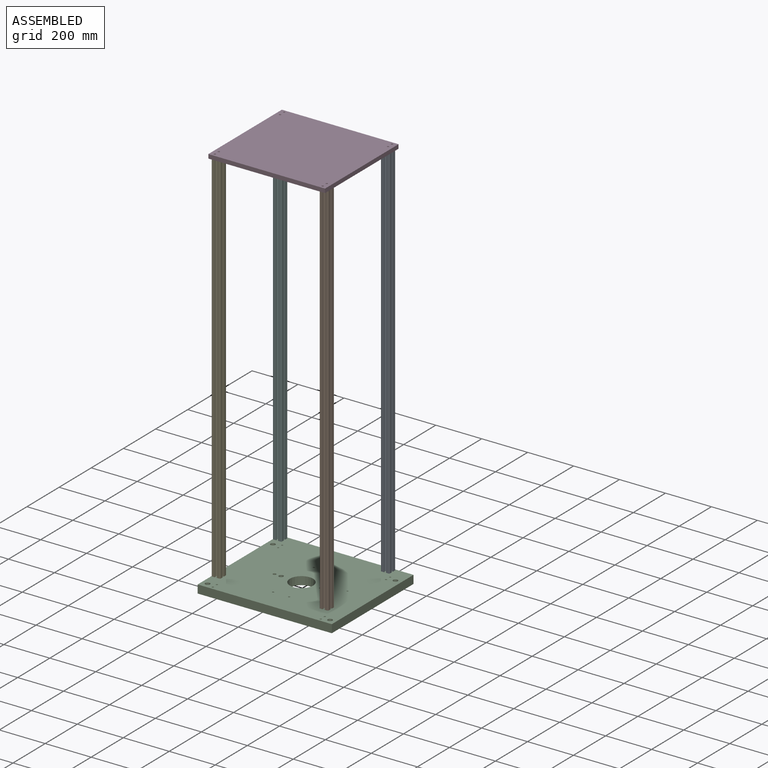
[diagram: assembled view]
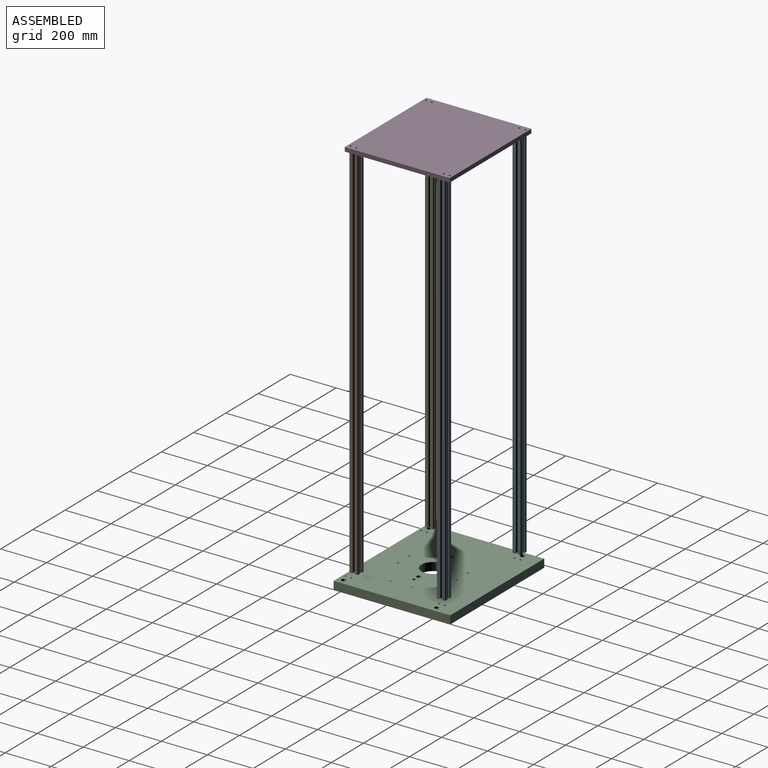
[diagram: assembled view, second angle]
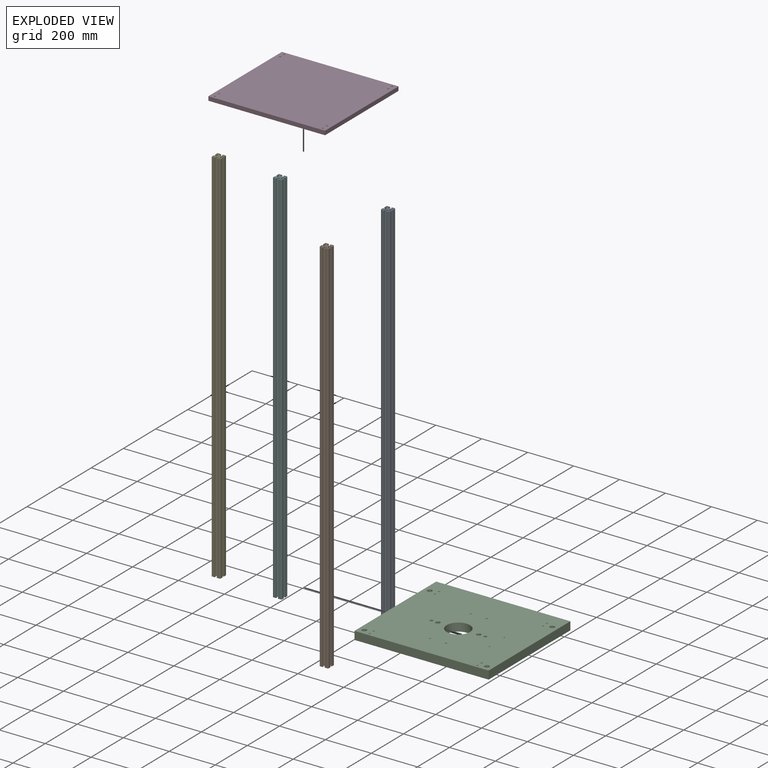
[diagram: exploded view]
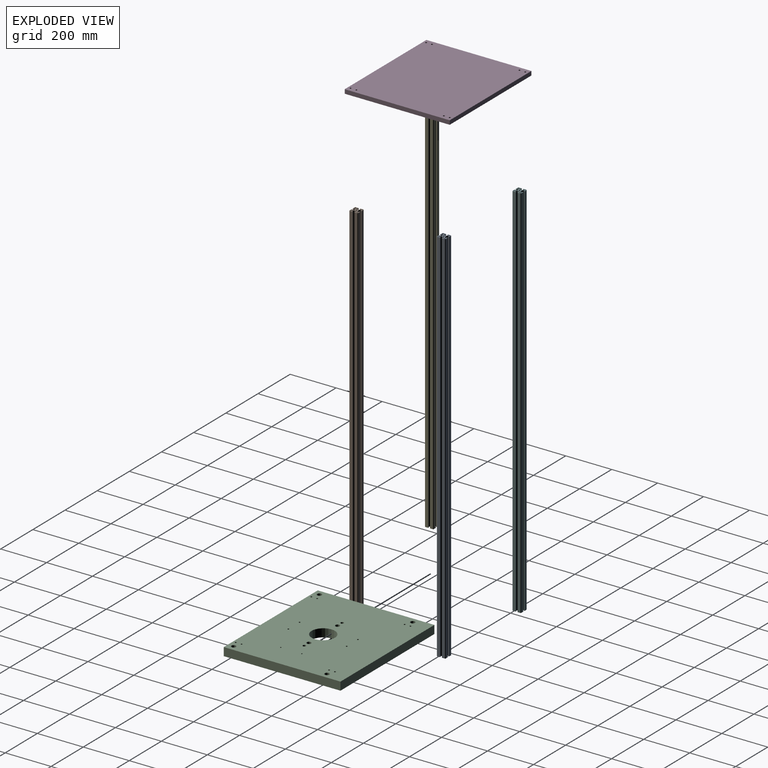
[diagram: exploded view, second angle]
ASSEMBLY  parts=6 mates=8
PART A: 87 faces, bbox 38.1x38.1x1651 mm
  f0: plane 1651x2.59mm, normal (1,0,0), area 4277.4mm2, adj f1,f84,f85,f86
  f1: cylinder r=2.79mm len=1651mm, axis (0,0,-1), area 7245.9mm2, adj f0,f2,f85,f86
  f2: plane 1651x2.59mm, normal (0,-1,0), area 4277.4mm2, adj f1,f3,f85,f86
  f3: plane 1651x5.38mm, normal (-1,0,0), area 8890.3mm2, adj f2,f84,f85,f86
  f4: plane 1651x2.59mm, normal (1,0,0), area 4277.4mm2, adj f5,f79,f85,f86
  f5: plane 1651x5.38mm, normal (0,-1,0), area 8890.3mm2, adj f4,f6,f85,f86
  f6: plane 1651x5.38mm, normal (-1,0,0), area 8890.3mm2, adj f5,f7,f85,f86
  f7: plane 1651x2.59mm, normal (0,1,0), area 4277.4mm2, adj f6,f79,f85,f86
  f8: plane 1651x2.59mm, normal (0,1,0), area 4277.4mm2, adj f9,f80,f85,f86
  f9: plane 1651x5.38mm, normal (1,0,0), area 8890.3mm2, adj f8,f10,f85,f86
  f10: plane 1651x5.38mm, normal (0,-1,0), area 8890.3mm2, adj f9,f11,f85,f86
  f11: plane 1651x2.59mm, normal (-1,0,0), area 4277.4mm2, adj f10,f80,f85,f86
  f12: cylinder r=2.79mm len=1651mm, axis (0,0,-1), area 7245.9mm2, adj f13,f81,f85,f86
  f13: plane 1651x2.59mm, normal (-1,0,0), area 4277.4mm2, adj f12,f14,f85,f86
  f14: plane 1651x5.38mm, normal (0,1,0), area 8890.3mm2, adj f13,f15,f85,f86
  f15: plane 1651x5.38mm, normal (1,0,0), area 8890.3mm2, adj f14,f81,f85,f86
  f16: plane 1651x4.57mm, normal (0,-1,0), area 7548.4mm2, adj f17,f82,f85,f86
  f17: plane 1651x2.79mm, normal (1,0,0), area 4612.9mm2, adj f16,f18,f85,f86
  f18: plane 1651x1.19mm, normal (0,1,0), area 1971mm2, adj f17,f19,f85,f86
  f19: plane 1651x3.43mm, normal (1,0,0), area 5661.3mm2, adj f18,f20,f85,f86
  f20: plane 1651x3.23mm, normal (0,-1,0), area 5332mm2, adj f19,f21,f85,f86
  f21: plane 1651x5.71mm, normal (-0.71,-0.71,0), area 13335mm2, adj f20,f22,f85,f86
  f22: plane 1651x9.15mm, normal (-1,0,0), area 15109.1mm2, adj f21,f23,f85,f86
  f23: plane 1651x5.71mm, normal (-0.71,0.71,0), area 13335mm2, adj f22,f24,f85,f86
  f24: plane 1651x3.23mm, normal (0,1,0), area 5332mm2, adj f23,f25,f85,f86
  f25: plane 1651x3.43mm, normal (1,0,0), area 5661.3mm2, adj f24,f26,f85,f86
  f26: plane 1651x1.19mm, normal (0,-1,0), area 1971mm2, adj f25,f27,f85,f86
  f27: plane 1651x2.79mm, normal (1,0,0), area 4612.9mm2, adj f26,f28,f85,f86
  f28: plane 1651x4.57mm, normal (0,1,0), area 7548.4mm2, adj f27,f29,f85,f86
  f29: plane 1651x11.81mm, normal (-1,0,0), area 19500mm2, adj f28,f30,f85,f86
  f30: cylinder r=3.17mm len=1651mm, axis (0,0,-1), area 8234mm2, adj f29,f31,f85,f86
  f31: plane 1651x11.81mm, normal (0,-1,0), area 19500mm2, adj f30,f32,f85,f86
  f32: plane 1651x4.57mm, normal (1,0,0), area 7548.4mm2, adj f31,f33,f85,f86
  f33: plane 1651x2.79mm, normal (0,1,0), area 4612.9mm2, adj f32,f34,f85,f86
  f34: plane 1651x1.19mm, normal (-1,0,0), area 1971mm2, adj f33,f35,f85,f86
  f35: plane 1651x3.43mm, normal (0,1,0), area 5661.3mm2, adj f34,f36,f85,f86
  f36: plane 1651x3.23mm, normal (1,0,0), area 5332mm2, adj f35,f37,f85,f86
  f37: plane 1651x5.71mm, normal (0.71,-0.71,0), area 13335mm2, adj f36,f38,f85,f86
  f38: plane 1651x9.15mm, normal (0,-1,0), area 15109.1mm2, adj f37,f39,f85,f86
  f39: plane 1651x5.71mm, normal (-0.71,-0.71,0), area 13335mm2, adj f38,f40,f85,f86
  f40: plane 1651x3.23mm, normal (-1,0,0), area 5332mm2, adj f39,f41,f85,f86
  f41: plane 1651x3.43mm, normal (0,1,0), area 5661.3mm2, adj f40,f42,f85,f86
  f42: plane 1651x1.19mm, normal (1,0,0), area 1971mm2, adj f41,f43,f85,f86
  f43: plane 1651x2.79mm, normal (0,1,0), area 4612.9mm2, adj f42,f44,f85,f86
  f44: plane 1651x4.57mm, normal (-1,0,0), area 7548.4mm2, adj f43,f45,f85,f86
  f45: plane 1651x11.81mm, normal (0,-1,0), area 19500mm2, adj f44,f46,f85,f86
  f46: cylinder r=3.17mm len=1651mm, axis (0,0,-1), area 8234mm2, adj f45,f47,f85,f86
  f47: plane 1651x11.81mm, normal (1,0,0), area 19500mm2, adj f46,f48,f85,f86
  f48: plane 1651x4.57mm, normal (0,1,0), area 7548.4mm2, adj f47,f49,f85,f86
  f49: plane 1651x2.79mm, normal (-1,0,0), area 4612.9mm2, adj f48,f50,f85,f86
  f50: plane 1651x1.19mm, normal (0,-1,0), area 1971mm2, adj f49,f51,f85,f86
  f51: plane 1651x3.43mm, normal (-1,0,0), area 5661.3mm2, adj f50,f52,f85,f86
  f52: plane 1651x3.23mm, normal (0,1,0), area 5332mm2, adj f51,f53,f85,f86
  f53: plane 1651x5.71mm, normal (0.71,0.71,0), area 13335mm2, adj f52,f54,f85,f86
  f54: plane 1651x9.15mm, normal (1,0,0), area 15109.1mm2, adj f53,f55,f85,f86
  f55: plane 1651x5.71mm, normal (0.71,-0.71,0), area 13335mm2, adj f54,f56,f85,f86
  f56: plane 1651x3.23mm, normal (0,-1,0), area 5332mm2, adj f55,f57,f85,f86
  f57: plane 1651x3.43mm, normal (-1,0,0), area 5661.3mm2, adj f56,f58,f85,f86
  f58: plane 1651x1.19mm, normal (0,1,0), area 1971mm2, adj f57,f59,f85,f86
  f59: plane 1651x2.79mm, normal (-1,0,0), area 4612.9mm2, adj f58,f60,f85,f86
  f60: plane 1651x4.57mm, normal (0,-1,0), area 7548.4mm2, adj f59,f61,f85,f86
  f61: plane 1651x11.81mm, normal (1,0,0), area 19500mm2, adj f60,f62,f85,f86
  f62: cylinder r=3.17mm len=1651mm, axis (0,0,-1), area 8234mm2, adj f61,f63,f85,f86
  f63: plane 1651x11.81mm, normal (0,1,0), area 19500mm2, adj f62,f64,f85,f86
  f64: plane 1651x4.57mm, normal (-1,0,0), area 7548.4mm2, adj f63,f65,f85,f86
  f65: plane 1651x2.79mm, normal (0,-1,0), area 4612.9mm2, adj f64,f66,f85,f86
  f66: plane 1651x1.19mm, normal (1,0,0), area 1971mm2, adj f65,f67,f85,f86
  f67: plane 1651x3.43mm, normal (0,-1,0), area 5661.3mm2, adj f66,f68,f85,f86
  f68: plane 1651x3.23mm, normal (-1,0,0), area 5332mm2, adj f67,f69,f85,f86
  f69: plane 1651x5.71mm, normal (-0.71,0.71,0), area 13335mm2, adj f68,f70,f85,f86
  f70: plane 1651x9.15mm, normal (0,1,0), area 15109.1mm2, adj f69,f71,f85,f86
  f71: plane 1651x5.71mm, normal (0.71,0.71,0), area 13335mm2, adj f70,f72,f85,f86
  f72: plane 1651x3.23mm, normal (1,0,0), area 5332mm2, adj f71,f73,f85,f86
  f73: plane 1651x3.43mm, normal (0,-1,0), area 5661.3mm2, adj f72,f74,f85,f86
  f74: plane 1651x1.19mm, normal (-1,0,0), area 1971mm2, adj f73,f75,f85,f86
  f75: plane 1651x2.79mm, normal (0,-1,0), area 4612.9mm2, adj f74,f76,f85,f86
  f76: plane 1651x4.57mm, normal (1,0,0), area 7548.4mm2, adj f75,f77,f85,f86
  f77: plane 1651x11.81mm, normal (0,1,0), area 19500mm2, adj f76,f78,f85,f86
  f78: cylinder r=3.17mm len=1651mm, axis (0,0,-1), area 8234mm2, adj f77,f82,f85,f86
  f79: cylinder r=2.79mm len=1651mm, axis (0,0,-1), area 7245.9mm2, adj f4,f7,f85,f86
  f80: cylinder r=2.79mm len=1651mm, axis (0,0,-1), area 7245.9mm2, adj f8,f11,f85,f86
  f81: plane 1651x2.59mm, normal (0,-1,0), area 4277.4mm2, adj f12,f15,f85,f86
  f82: plane 1651x11.81mm, normal (-1,0,0), area 19500mm2, adj f16,f78,f85,f86
  f83: cylinder r=3.26mm len=1651mm, axis (0,0,-1), area 33858.2mm2, adj f85,f86
  f84: plane 1651x5.38mm, normal (0,1,0), area 8890.3mm2, adj f0,f3,f85,f86
  f85: plane 38.1x38.1mm, normal (0,0,1), area 611.7mm2, adj f0,f1,f2,f3,f4,f5,f6,f7
  f86: plane 38.1x38.1mm, normal (0,0,-1), area 611.7mm2, adj f0,f1,f2,f3,f4,f5,f6,f7
PART B: same geometry as A
PART C: 29 faces, bbox 584.2x508x35.7 mm
  f0: plane 584.2x35.7mm, normal (0,-1,0), area 20855.8mm2, adj f1,f25,f27,f28
  f1: plane 508x35.7mm, normal (1,0,0), area 18135.4mm2, adj f0,f2,f27,f28
  f2: plane 584.2x35.7mm, normal (0,1,0), area 20855.8mm2, adj f1,f25,f27,f28
  f3: cylinder r=3.81mm len=35.7mm, axis (0,0,-1), area 854.6mm2, adj f27,f28
  f4: cylinder r=3.81mm len=35.7mm, axis (0,0,-1), area 854.6mm2, adj f27,f28
  f5: cylinder r=3.81mm len=35.7mm, axis (0,0,-1), area 854.6mm2, adj f27,f28
  f6: cylinder r=3.17mm len=35.7mm, axis (0,0,-1), area 712.2mm2, adj f27,f28
  f7: cylinder r=3.17mm len=35.7mm, axis (0,0,-1), area 712.2mm2, adj f27,f28
  f8: cylinder r=3.81mm len=35.7mm, axis (0,0,-1), area 854.6mm2, adj f27,f28
  f9: cylinder r=3.81mm len=35.7mm, axis (0,0,-1), area 854.6mm2, adj f27,f28
  f10: cylinder r=3.81mm len=35.7mm, axis (0,0,-1), area 854.6mm2, adj f27,f28
  f11: cylinder r=3.81mm len=35.7mm, axis (0,0,-1), area 854.6mm2, adj f27,f28
  f12: cylinder r=10.16mm len=35.7mm, axis (0,0,-1), area 2279mm2, adj f27,f28
  f13: cylinder r=10.16mm len=35.7mm, axis (0,0,-1), area 2279mm2, adj f27,f28
  f14: cylinder r=10.16mm len=35.7mm, axis (0,0,-1), area 2279mm2, adj f27,f28
  f15: cylinder r=10.16mm len=35.7mm, axis (0,0,-1), area 2279mm2, adj f27,f28
  f16: cylinder r=50.8mm len=101.6mm, axis (0,0,-1), area 11394.8mm2, adj f27,f28
  f17: cylinder r=9.5mm len=35.7mm, axis (0,0,-1), area 2130.8mm2, adj f27,f28
  f18: cylinder r=6.71mm len=35.7mm, axis (0,0,-1), area 1504.1mm2, adj f27,f28
  f19: cylinder r=9.5mm len=35.7mm, axis (0,0,-1), area 2130.8mm2, adj f27,f28
  f20: cylinder r=6.71mm len=35.7mm, axis (0,0,-1), area 1504.1mm2, adj f27,f28
  f21: cylinder r=3.81mm len=35.7mm, axis (0,0,-1), area 854.6mm2, adj f27,f28
  f22: cylinder r=3.81mm len=35.7mm, axis (0,0,-1), area 854.6mm2, adj f27,f28
  f23: cylinder r=3.81mm len=35.7mm, axis (0,0,-1), area 854.6mm2, adj f27,f28
  f24: cylinder r=3.81mm len=35.7mm, axis (0,0,-1), area 854.6mm2, adj f27,f28
  f25: plane 508x35.7mm, normal (-1,0,0), area 18135.4mm2, adj f0,f2,f27,f28
  f26: cylinder r=3.81mm len=35.7mm, axis (0,0,-1), area 854.6mm2, adj f27,f28
  f27: plane 584.2x508mm, normal (0,0,1), area 285909mm2, adj f0,f1,f2,f3,f4,f5,f6,f7
  f28: plane 584.2x508mm, normal (0,0,-1), area 285909mm2, adj f0,f1,f2,f3,f4,f5,f6,f7
PART D: 14 faces, bbox 508x457.2x17.8 mm
  f0: plane 508x17.78mm, normal (0,1,0), area 9032.2mm2, adj f1,f11,f12,f13
  f1: plane 457.2x17.78mm, normal (-1,0,0), area 8129mm2, adj f0,f2,f12,f13
  f2: plane 508x17.78mm, normal (0,-1,0), area 9032.2mm2, adj f1,f11,f12,f13
  f3: cylinder r=3.92mm len=17.78mm, axis (0,0,-1), area 437.7mm2, adj f12,f13
  f4: cylinder r=3.91mm len=17.78mm, axis (0,0,-1), area 436.3mm2, adj f12,f13
  f5: cylinder r=3.91mm len=17.78mm, axis (0,0,-1), area 436.3mm2, adj f12,f13
  f6: cylinder r=3.91mm len=17.78mm, axis (0,0,-1), area 436.3mm2, adj f12,f13
  f7: cylinder r=3.92mm len=17.78mm, axis (0,0,-1), area 437.7mm2, adj f12,f13
  f8: cylinder r=3.91mm len=17.78mm, axis (0,0,-1), area 436.3mm2, adj f12,f13
  f9: cylinder r=3.92mm len=17.78mm, axis (0,0,-1), area 437.7mm2, adj f12,f13
  f10: cylinder r=3.92mm len=17.78mm, axis (0,0,-1), area 437.7mm2, adj f12,f13
  f11: plane 457.2x17.78mm, normal (1,0,0), area 8129mm2, adj f0,f2,f12,f13
  f12: plane 508x457.2mm, normal (0,0,1), area 231873.1mm2, adj f0,f1,f2,f3,f4,f5,f6,f7
  f13: plane 508x457.2mm, normal (0,0,-1), area 231873.1mm2, adj f0,f1,f2,f3,f4,f5,f6,f7
PART E: same geometry as A
PART F: same geometry as A
PLACE A t=(-320.98,-154.97,-425.51)mm
PLACE B t=(-320.98,-535.97,-425.51)mm
PLACE C t=(-550.47,-337.09,-488.11)mm
PLACE D t=(-554.94,-343.96,1225.49)mm
PLACE E t=(-790.88,-535.97,-425.51)mm
PLACE F t=(-790.88,-154.97,-425.51)mm
MATE planar D.f3 <-> E.f83  axis (0,0,-1) through (-789.89,-534.46,1225.49)mm
MATE cylindrical D.f7 <-> A.f83  axis (0,0,-1) through (-319.99,-153.46,1225.49)mm
MATE planar F.f83 <-> D.f9  axis (0,0,1) through (-789.89,-153.46,1225.49)mm
MATE cylindrical F.f83 <-> D.f9  axis (0,0,1) through (-789.89,-153.46,1225.49)mm
MATE cylindrical E.f83 <-> D.f3  axis (0,0,1) through (-789.89,-534.46,1225.49)mm
MATE planar D.f7 <-> A.f83  axis (0,0,-1) through (-319.99,-153.46,1225.49)mm
MATE planar B.f83 <-> D.f10  axis (0,0,1) through (-319.99,-534.46,1225.49)mm
MATE cylindrical D.f10 <-> B.f83  axis (0,0,-1) through (-319.99,-534.46,1225.49)mm
